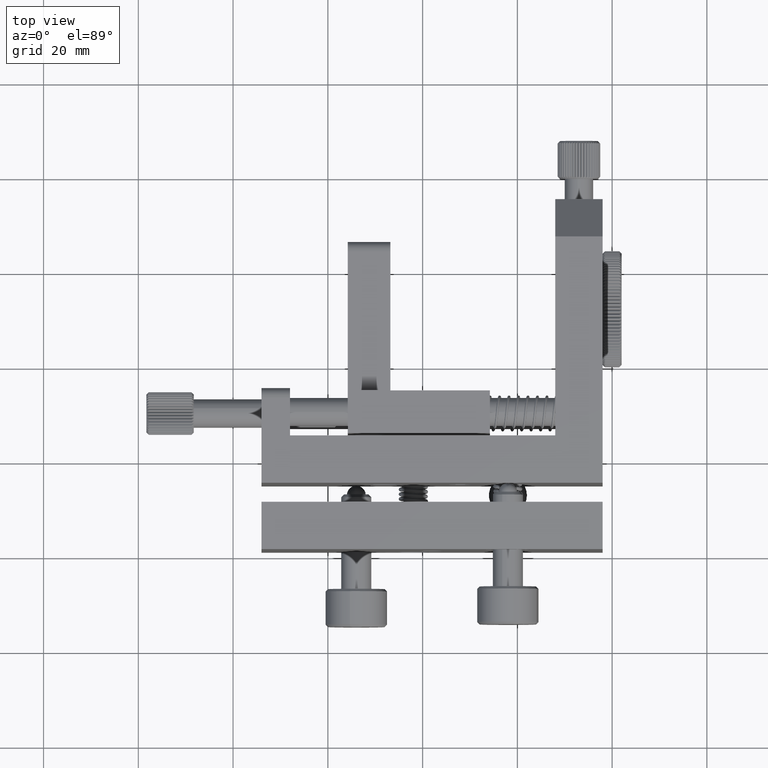
[diagram: clean part render]
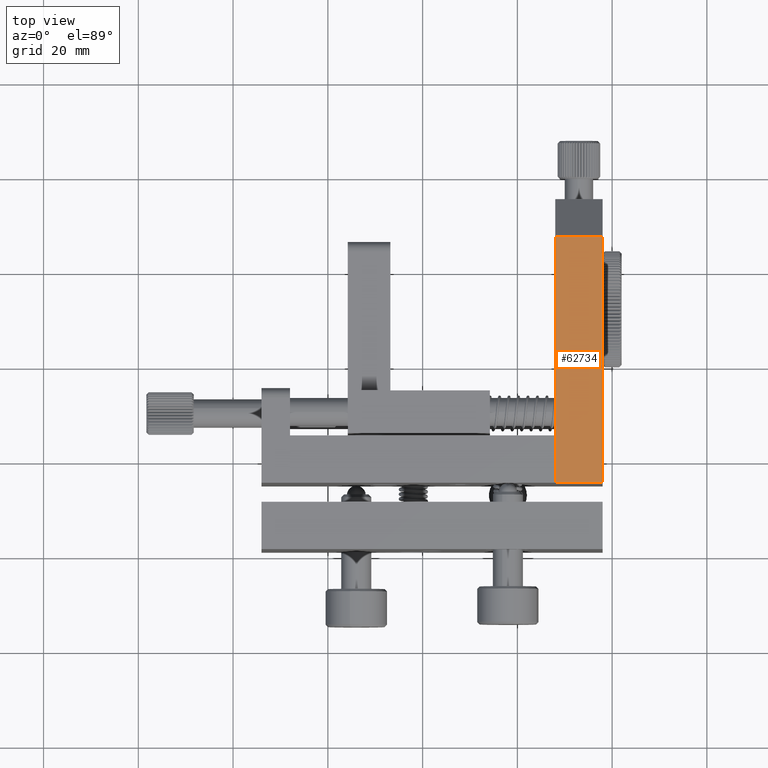
[diagram: same view with one face highlighted and labeled with its STEP entity id]
A machine part, top view. The second image highlights one B-rep face of the part: STEP entity #62734.
In plain terms, the highlighted planar face has unit normal (0, 0, -1).
Its self-contained STEP definition (entity closure, byte-faithful):
#2369 = EDGE_CURVE ( 'NONE', #58240, #40019, #52153, .T. ) ;
#4816 = CARTESIAN_POINT ( 'NONE',  ( 37.99999999999999300, -5.000000000000000900, 22.49999999999995000 ) ) ;
#6249 = DIRECTION ( 'NONE',  ( 2.057617461952175700E-032, -1.000000000000000000, -1.334402673828313300E-016 ) ) ;
#8168 = CARTESIAN_POINT ( 'NONE',  ( 37.99999999999999300, 47.00000000000000000, 22.49999999999995700 ) ) ;
#8434 = VECTOR ( 'NONE', #6249, 1000.000000000000000 ) ;
#8632 = CARTESIAN_POINT ( 'NONE',  ( 37.99999999999999300, 47.00000000000000000, 22.49999999999995700 ) ) ;
#9178 = VERTEX_POINT ( 'NONE', #39802 ) ;
#13440 = LINE ( 'NONE', #4816, #16589 ) ;
#16589 = VECTOR ( 'NONE', #20307, 1000.000000000000000 ) ;
#17720 = EDGE_LOOP ( 'NONE', ( #21070, #40847, #53705, #53661 ) ) ;
#19997 = EDGE_CURVE ( 'NONE', #9178, #53874, #55184, .T. ) ;
#20307 = DIRECTION ( 'NONE',  ( -1.000000000000000000, 0.0000000000000000000, -1.541976423090495400E-016 ) ) ;
#21070 = ORIENTED_EDGE ( 'NONE', *, *, #19997, .T. ) ;
#24810 = AXIS2_PLACEMENT_3D ( 'NONE', #56742, #26895, #41928 ) ;
#24866 = CARTESIAN_POINT ( 'NONE',  ( 37.99999999999999300, -5.000000000000000900, 22.49999999999995000 ) ) ;
#26895 = DIRECTION ( 'NONE',  ( 1.541976423090495400E-016, 1.334402673828313300E-016, -1.000000000000000000 ) ) ;
#30205 = VECTOR ( 'NONE', #52668, 1000.000000000000000 ) ;
#36045 = FACE_OUTER_BOUND ( 'NONE', #17720, .T. ) ;
#36076 = CARTESIAN_POINT ( 'NONE',  ( 37.99999999999999300, 47.00000000000000000, 22.49999999999995700 ) ) ;
#36677 = PLANE ( 'NONE',  #24810 ) ;
#38249 = CARTESIAN_POINT ( 'NONE',  ( 27.99999999999998900, 47.00000000000000000, 22.49999999999998900 ) ) ;
#39802 = CARTESIAN_POINT ( 'NONE',  ( 27.99999999999998900, 47.00000000000000000, 22.49999999999998900 ) ) ;
#40019 = VERTEX_POINT ( 'NONE', #24866 ) ;
#40847 = ORIENTED_EDGE ( 'NONE', *, *, #44797, .F. ) ;
#41928 = DIRECTION ( 'NONE',  ( -2.057617461952175700E-032, 1.000000000000000000, 1.334402673828313300E-016 ) ) ;
#44797 = EDGE_CURVE ( 'NONE', #40019, #53874, #13440, .T. ) ;
#46271 = VECTOR ( 'NONE', #63155, 1000.000000000000000 ) ;
#52153 = LINE ( 'NONE', #36076, #8434 ) ;
#52668 = DIRECTION ( 'NONE',  ( 2.057617461952175700E-032, -1.000000000000000000, -1.334402673828313300E-016 ) ) ;
#53661 = ORIENTED_EDGE ( 'NONE', *, *, #61880, .T. ) ;
#53705 = ORIENTED_EDGE ( 'NONE', *, *, #2369, .F. ) ;
#53874 = VERTEX_POINT ( 'NONE', #62773 ) ;
#55184 = LINE ( 'NONE', #38249, #30205 ) ;
#56742 = CARTESIAN_POINT ( 'NONE',  ( 37.99999999999999300, 47.00000000000000000, 22.49999999999995700 ) ) ;
#58240 = VERTEX_POINT ( 'NONE', #8168 ) ;
#60290 = LINE ( 'NONE', #8632, #46271 ) ;
#61880 = EDGE_CURVE ( 'NONE', #58240, #9178, #60290, .T. ) ;
#62734 = ADVANCED_FACE ( 'NONE', ( #36045 ), #36677, .F. ) ;
#62773 = CARTESIAN_POINT ( 'NONE',  ( 27.99999999999998900, -5.000000000000000900, 22.49999999999998200 ) ) ;
#63155 = DIRECTION ( 'NONE',  ( -1.000000000000000000, 0.0000000000000000000, -1.541976423090495400E-016 ) ) ;